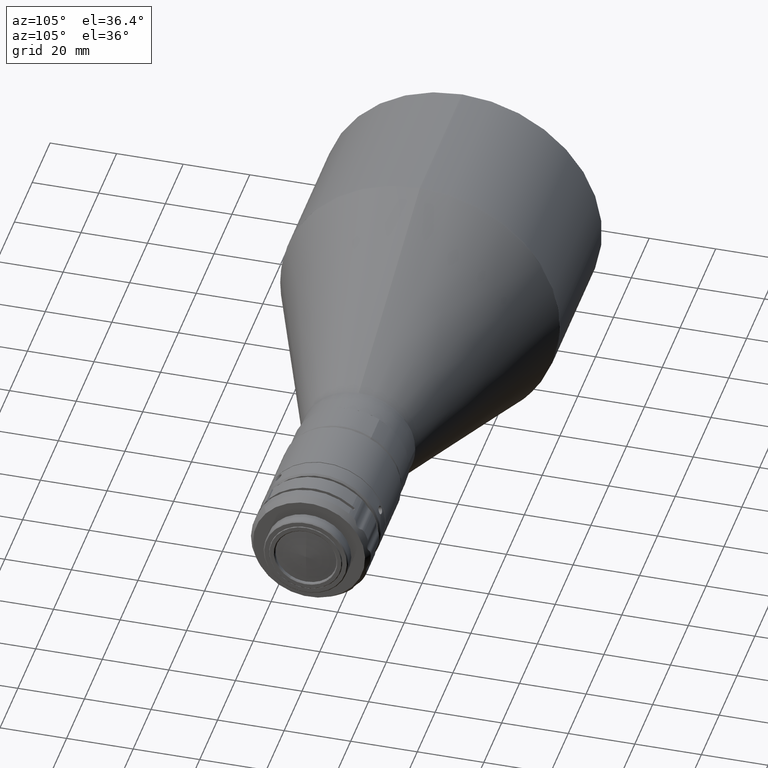
[diagram: clean part render]
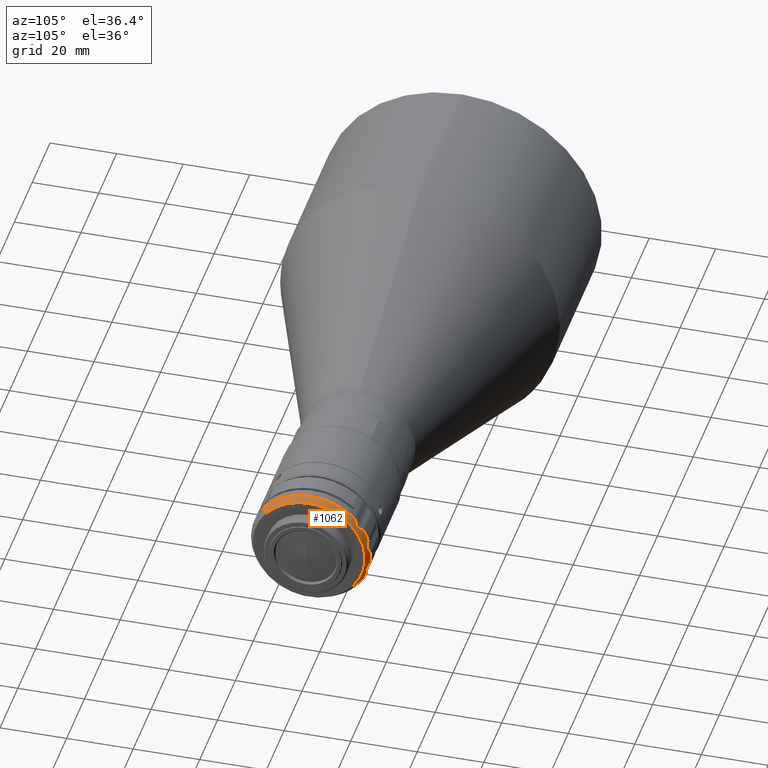
[diagram: same view with one face highlighted and labeled with its STEP entity id]
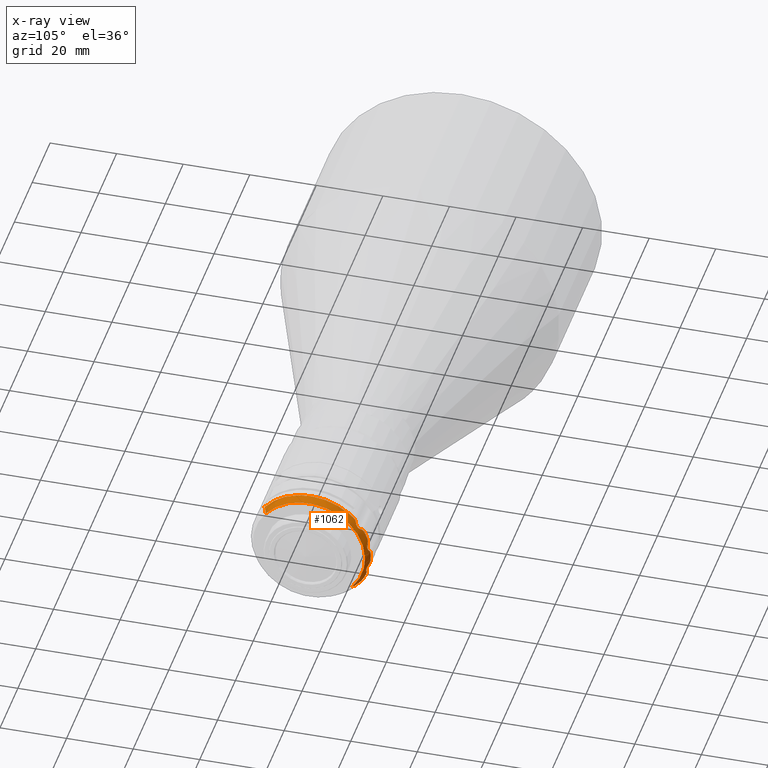
[diagram: x-ray of the same camera — body ghosted, the highlighted face saturated]
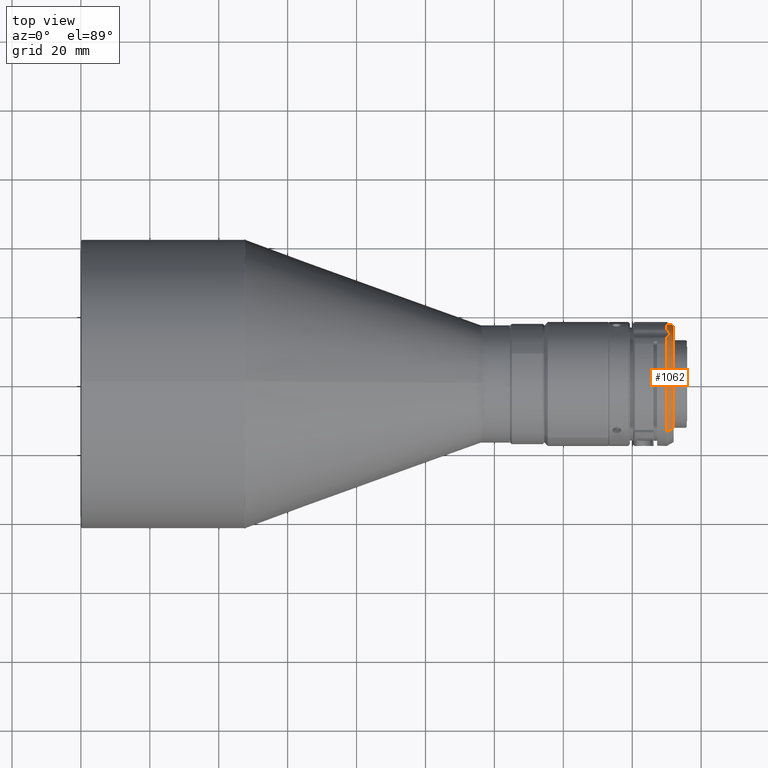
[diagram: same view with one face highlighted and labeled with its STEP entity id]
A machine part, auxiliary view. The second image highlights one B-rep face of the part: STEP entity #1062.
The next image is the same camera in x-ray: the body ghosted, the highlighted face saturated — about 0% of this face is hidden behind the body in this view.
A second angle (top view) of the same face is appended — the face is thin or edge-on in the first view.
In plain terms, the highlighted conical surface has half-angle 30 deg.
Its self-contained STEP definition (entity closure, byte-faithful):
#19 = CARTESIAN_POINT ( 'NONE',  ( 170.4717503504343800, 13.68878098208271300, 11.28254610637641000 ) ) ;
#43 = ORIENTED_EDGE ( 'NONE', *, *, #1749, .F. ) ;
#46 = ORIENTED_EDGE ( 'NONE', *, *, #3446, .T. ) ;
#51 = DIRECTION ( 'NONE',  ( 0.0000000000000000000, 0.7716021499966070300, -0.6361054331796055500 ) ) ;
#66 = B_SPLINE_CURVE_WITH_KNOTS ( 'NONE', 3,
 ( #3078, #1339, #1319, #1675, #2737, #1704, #666, #2424 ),
 .UNSPECIFIED., .F., .F.,
 ( 4, 2, 2, 4 ),
 ( 0.0000000000000000000, 0.0007318732010900073500, 0.001097809801635022400, 0.001463746402180037700 ),
 .UNSPECIFIED. ) ;
#72 = VECTOR ( 'NONE', #4170, 1000.000000000000000 ) ;
#95 = ORIENTED_EDGE ( 'NONE', *, *, #3076, .F. ) ;
#120 = CARTESIAN_POINT ( 'NONE',  ( 170.0200000000000400, 0.0000000000000000000, 0.0000000000000000000 ) ) ;
#134 = DIRECTION ( 'NONE',  ( -1.000000000000000000, 0.0000000000000000000, -0.0000000000000000000 ) ) ;
#144 = CARTESIAN_POINT ( 'NONE',  ( 172.0200000000000100, -12.99786928221589300, 10.71538651131568700 ) ) ;
#186 = CARTESIAN_POINT ( 'NONE',  ( 170.0200000002182600, 12.99290850105912300, 12.45730021628160400 ) ) ;
#246 = CARTESIAN_POINT ( 'NONE',  ( 170.4717503490275900, 17.62515244227656900, 2.008126697513735100 ) ) ;
#268 = CARTESIAN_POINT ( 'NONE',  ( 172.0200000000000400, 12.99786928221587900, -10.71538651131567800 ) ) ;
#275 = CIRCLE ( 'NONE', #3099, 18.00000000000000400 ) ;
#277 = CARTESIAN_POINT ( 'NONE',  ( 170.4717503488226400, 15.12514189207363200, 9.268692151301202400 ) ) ;
#301 = DIRECTION ( 'NONE',  ( -0.8660254038555481600, 0.3858010749032688700, -0.3180527165114565000 ) ) ;
#366 = CARTESIAN_POINT ( 'NONE',  ( 170.4717503490275900, 17.62515244227656900, 2.008126697513735100 ) ) ;
#378 = B_SPLINE_CURVE_WITH_KNOTS ( 'NONE', 3,
 ( #1894, #4264, #1274, #3235, #4358, #2316, #2994, #2353, #1255, #277 ),
 .UNSPECIFIED., .F., .F.,
 ( 4, 2, 2, 2, 4 ),
 ( 0.0000000000000000000, 0.0006695850013534745100, 0.001339170002706949000, 0.002008755004060423500, 0.002678340005413898000 ),
 .UNSPECIFIED. ) ;
#423 = CIRCLE ( 'NONE', #976, 18.00000000000000400 ) ;
#441 = DIRECTION ( 'NONE',  ( -1.541976423090494800E-015, 0.7716021499966070300, -0.6361054331796055500 ) ) ;
#472 = CARTESIAN_POINT ( 'NONE',  ( 170.5943596014916500, 17.14976043232416500, 4.253058858563489000 ) ) ;
#529 = CARTESIAN_POINT ( 'NONE',  ( 170.4717503502911600, 17.17445882258711300, 4.440330570141446400 ) ) ;
#555 = CARTESIAN_POINT ( 'NONE',  ( 170.8862413627046200, 17.24765663219410800, 2.968946907887817200 ) ) ;
#561 = EDGE_CURVE ( 'NONE', #1102, #3661, #4253, .T. ) ;
#580 = ORIENTED_EDGE ( 'NONE', *, *, #561, .F. ) ;
#607 = CARTESIAN_POINT ( 'NONE',  ( 170.0312236906812000, 17.11249786983896100, 5.562685115095026100 ) ) ;
#609 = CARTESIAN_POINT ( 'NONE',  ( 170.8858077023131200, 16.99934928282623400, -4.162594394447066500 ) ) ;
#647 = CARTESIAN_POINT ( 'NONE',  ( 170.0736238499741800, 17.80512710578463100, -2.424488303890485400 ) ) ;
#666 = CARTESIAN_POINT ( 'NONE',  ( 170.0200000008353200, 16.64163433948501200, -6.860851990012108100 ) ) ;
#701 = CARTESIAN_POINT ( 'NONE',  ( 170.0736238500067000, 13.30218088496600600, 12.08108763695655700 ) ) ;
#705 = CARTESIAN_POINT ( 'NONE',  ( 170.0199999997707600, 17.04025671443750800, 5.799107785757405200 ) ) ;
#708 = CARTESIAN_POINT ( 'NONE',  ( 170.8451937671103700, 13.80102597996285500, -10.80050123116648700 ) ) ;
#734 = CARTESIAN_POINT ( 'NONE',  ( 170.1047161278639000, 13.36691116036485400, 11.98249876173584200 ) ) ;
#756 = CARTESIAN_POINT ( 'NONE',  ( 170.0200000000000400, 0.0000000000000000000, 0.0000000000000000000 ) ) ;
#794 = EDGE_CURVE ( 'NONE', #2408, #1695, #1357, .T. ) ;
#843 = EDGE_CURVE ( 'NONE', #2397, #1695, #2241, .T. ) ;
#845 = VERTEX_POINT ( 'NONE', #1801 ) ;
#851 = CARTESIAN_POINT ( 'NONE',  ( 170.4717503490275900, 17.62515244227656900, 2.008126697513735100 ) ) ;
#871 = CARTESIAN_POINT ( 'NONE',  ( 170.5943596016800300, 17.34038176732936200, -3.393221580907437300 ) ) ;
#901 = VERTEX_POINT ( 'NONE', #1862 ) ;
#911 = CARTESIAN_POINT ( 'NONE',  ( 170.3373716919265600, 15.29158022482489300, 9.145575036662503300 ) ) ;
#917 = CIRCLE ( 'NONE', #1731, 18.00000000000000400 ) ;
#928 = B_SPLINE_CURVE_WITH_KNOTS ( 'NONE', 3,
 ( #1893, #871, #3548, #2631, #609, #3173, #1201, #4190, #4040, #3669 ),
 .UNSPECIFIED., .F., .F.,
 ( 4, 2, 2, 2, 4 ),
 ( 0.0000000000000000000, 0.0006695850014280316200, 0.001339170002856063200, 0.002008755004284094900, 0.002678340005712126500 ),
 .UNSPECIFIED. ) ;
#935 = CARTESIAN_POINT ( 'NONE',  ( 170.0199999998415600, 16.00926641271006900, 8.228206908565630000 ) ) ;
#943 = ORIENTED_EDGE ( 'NONE', *, *, #843, .F. ) ;
#953 = CARTESIAN_POINT ( 'NONE',  ( 170.3373716941217700, 14.61564884832828800, -10.19101453344196500 ) ) ;
#976 = AXIS2_PLACEMENT_3D ( 'NONE', #2757, #2439, #1740 ) ;
#997 = EDGE_CURVE ( 'NONE', #4261, #1419, #917, .T. ) ;
#1000 = CARTESIAN_POINT ( 'NONE',  ( 170.0199999998544100, 15.39564017443957400, -9.325999336544851900 ) ) ;
#1043 = CARTESIAN_POINT ( 'NONE',  ( 170.8860254039945800, 13.64695926456054000, -10.95726671559742700 ) ) ;
#1048 = CARTESIAN_POINT ( 'NONE',  ( 170.2251474511325600, 13.54145246518727300, 11.68037429246720300 ) ) ;
#1062 = ADVANCED_FACE ( 'NONE', ( #1239 ), #2384, .T. ) ;
#1092 = ORIENTED_EDGE ( 'NONE', *, *, #2858, .T. ) ;
#1100 = CARTESIAN_POINT ( 'NONE',  ( 172.0200000000000400, -12.99786928221588100, 10.71538651131567700 ) ) ;
#1102 = VERTEX_POINT ( 'NONE', #2133 ) ;
#1113 = DIRECTION ( 'NONE',  ( -1.541976423090494800E-015, 0.7716021499966070300, -0.6361054331796055500 ) ) ;
#1133 = VERTEX_POINT ( 'NONE', #1100 ) ;
#1167 = CARTESIAN_POINT ( 'NONE',  ( 170.0200000004091700, 16.59373026901570100, -6.974820123175065900 ) ) ;
#1201 = CARTESIAN_POINT ( 'NONE',  ( 170.8454266945366300, 16.84959280642960200, -4.817237624834028500 ) ) ;
#1239 = FACE_OUTER_BOUND ( 'NONE', #1446, .T. ) ;
#1255 = CARTESIAN_POINT ( 'NONE',  ( 170.5944312039536300, 14.97319218954507200, 9.381091792574256500 ) ) ;
#1257 = ORIENTED_EDGE ( 'NONE', *, *, #3769, .F. ) ;
#1271 = VERTEX_POINT ( 'NONE', #4198 ) ;
#1274 = CARTESIAN_POINT ( 'NONE',  ( 170.6973777551586100, 13.81734836931945400, 10.91779981736539900 ) ) ;
#1290 = VERTEX_POINT ( 'NONE', #3844 ) ;
#1292 = CARTESIAN_POINT ( 'NONE',  ( 170.0199999998415600, 16.00926641271006900, 8.228206908565630000 ) ) ;
#1302 = CARTESIAN_POINT ( 'NONE',  ( 170.0199999997707600, 17.04025671443750800, 5.799107785757405200 ) ) ;
#1319 = CARTESIAN_POINT ( 'NONE',  ( 170.2251474509605800, 16.82747985029463700, -6.052933203826001800 ) ) ;
#1331 = CARTESIAN_POINT ( 'NONE',  ( 170.3376558866861200, 17.20147079221693400, 4.645144639272890800 ) ) ;
#1339 = CARTESIAN_POINT ( 'NONE',  ( 170.3376558856698200, 16.83512843793854300, -5.834930730841374000 ) ) ;
#1343 = CARTESIAN_POINT ( 'NONE',  ( 170.4717503504461100, 14.44101989254406600, -10.30220927184288400 ) ) ;
#1357 = LINE ( 'NONE', #1364, #4303 ) ;
#1360 = DIRECTION ( 'NONE',  ( -1.000000000000000000, 0.0000000000000000000, -0.0000000000000000000 ) ) ;
#1364 = CARTESIAN_POINT ( 'NONE',  ( 172.0200000000000100, 12.99786928221589100, -10.71538651131568700 ) ) ;
#1413 = B_SPLINE_CURVE_WITH_KNOTS ( 'NONE', 3,
 ( #19, #3788, #1048, #734, #701, #1753, #3443, #2801 ),
 .UNSPECIFIED., .F., .F.,
 ( 4, 2, 2, 4 ),
 ( 7.108696145181305200E-013, 0.0007318732060252493400, 0.001097809808682436900, 0.001463746411339624800 ),
 .UNSPECIFIED. ) ;
#1419 = VERTEX_POINT ( 'NONE', #1167 ) ;
#1444 = DIRECTION ( 'NONE',  ( 1.000000000000000000, -0.0000000000000000000, 0.0000000000000000000 ) ) ;
#1446 = EDGE_LOOP ( 'NONE', ( #3087, #1587, #1940, #943, #43, #1970, #1257, #1486, #2608, #95, #1528, #580, #1092, #3616, #4137, #2203, #46, #1682, #2140 ) ) ;
#1455 = CIRCLE ( 'NONE', #4043, 18.00000000000000400 ) ;
#1456 = EDGE_CURVE ( 'NONE', #1290, #2254, #928, .T. ) ;
#1486 = ORIENTED_EDGE ( 'NONE', *, *, #1456, .F. ) ;
#1528 = ORIENTED_EDGE ( 'NONE', *, *, #2425, .T. ) ;
#1553 = VERTEX_POINT ( 'NONE', #186 ) ;
#1587 = ORIENTED_EDGE ( 'NONE', *, *, #3912, .F. ) ;
#1601 = CARTESIAN_POINT ( 'NONE',  ( 170.8858077019641800, 17.16583103710026800, 3.411643730664837700 ) ) ;
#1666 = CARTESIAN_POINT ( 'NONE',  ( 170.0312236913145200, 17.86008238866709500, -2.190549267148788300 ) ) ;
#1675 = CARTESIAN_POINT ( 'NONE',  ( 170.1047161283833900, 16.77277892453956600, -6.397536844888030300 ) ) ;
#1682 = ORIENTED_EDGE ( 'NONE', *, *, #2853, .F. ) ;
#1686 = CARTESIAN_POINT ( 'NONE',  ( 170.2247196855311100, 14.78782109836086200, -10.05641382484214400 ) ) ;
#1695 = VERTEX_POINT ( 'NONE', #3276 ) ;
#1697 = EDGE_CURVE ( 'NONE', #3620, #4215, #3740, .T. ) ;
#1704 = CARTESIAN_POINT ( 'NONE',  ( 170.0312236921681400, 16.68230373859550800, -6.744018903971267200 ) ) ;
#1716 = DIRECTION ( 'NONE',  ( -1.541976423090494800E-015, 0.7716021499966070300, -0.6361054331796055500 ) ) ;
#1718 = CARTESIAN_POINT ( 'NONE',  ( 172.0200000000000100, 0.0000000000000000000, 0.0000000000000000000 ) ) ;
#1731 = AXIS2_PLACEMENT_3D ( 'NONE', #3336, #4378, #4395 ) ;
#1740 = DIRECTION ( 'NONE',  ( -1.541976423090494800E-015, 0.7716021499966070300, -0.6361054331796055500 ) ) ;
#1744 = DIRECTION ( 'NONE',  ( -1.000000000000000000, 0.0000000000000000000, -0.0000000000000000000 ) ) ;
#1749 = EDGE_CURVE ( 'NONE', #4261, #2397, #4085, .T. ) ;
#1753 = CARTESIAN_POINT ( 'NONE',  ( 170.0312236914485000, 13.15829776067241300, 12.27355894027852100 ) ) ;
#1783 = CARTESIAN_POINT ( 'NONE',  ( 170.6973523610981300, 14.12199883799997500, -10.52079243713685700 ) ) ;
#1801 = CARTESIAN_POINT ( 'NONE',  ( 170.4717503504343800, 13.68878098208271300, 11.28254610637641000 ) ) ;
#1862 = CARTESIAN_POINT ( 'NONE',  ( 170.0199999999111900, 17.98671331548752400, 0.6914796514074679200 ) ) ;
#1893 = CARTESIAN_POINT ( 'NONE',  ( 170.4717503507254400, 17.44191055589170200, -3.233933761265181500 ) ) ;
#1894 = CARTESIAN_POINT ( 'NONE',  ( 170.4717503504343800, 13.68878098208271300, 11.28254610637641000 ) ) ;
#1928 = EDGE_CURVE ( 'NONE', #1133, #1271, #4296, .T. ) ;
#1940 = ORIENTED_EDGE ( 'NONE', *, *, #794, .T. ) ;
#1970 = ORIENTED_EDGE ( 'NONE', *, *, #997, .T. ) ;
#1980 = CARTESIAN_POINT ( 'NONE',  ( 170.0641255865629100, 15.11716679720988100, -9.726610124608534100 ) ) ;
#1997 = CARTESIAN_POINT ( 'NONE',  ( 170.2251474506600700, 17.20906329721228200, 4.863149074552885600 ) ) ;
#2040 = CARTESIAN_POINT ( 'NONE',  ( 170.0200000000903600, 17.89452620527397600, -1.945747128196701800 ) ) ;
#2053 = B_SPLINE_CURVE_WITH_KNOTS ( 'NONE', 3,
 ( #2693, #1331, #1997, #2060, #3383, #607, #2338, #1302 ),
 .UNSPECIFIED., .F., .F.,
 ( 4, 2, 2, 4 ),
 ( 7.411296004553642000E-013, 0.0007318732059759671500, 0.001097809808593387300, 0.001463746411210807300 ),
 .UNSPECIFIED. ) ;
#2060 = CARTESIAN_POINT ( 'NONE',  ( 170.1047161272581400, 17.17855847162581600, 5.210731176482666700 ) ) ;
#2087 = CARTESIAN_POINT ( 'NONE',  ( 170.4717503504461100, 14.44101989254406600, -10.30220927184288400 ) ) ;
#2111 = CARTESIAN_POINT ( 'NONE',  ( 170.0200000000903600, 17.89452620527397600, -1.945747128196701800 ) ) ;
#2133 = CARTESIAN_POINT ( 'NONE',  ( 170.4717503502911600, 17.17445882258711300, 4.440330570141446400 ) ) ;
#2140 = ORIENTED_EDGE ( 'NONE', *, *, #3423, .F. ) ;
#2203 = ORIENTED_EDGE ( 'NONE', *, *, #3679, .F. ) ;
#2218 = CARTESIAN_POINT ( 'NONE',  ( 170.6973777552665900, 17.13683200398709200, 4.055423242540544300 ) ) ;
#2241 = B_SPLINE_CURVE_WITH_KNOTS ( 'NONE', 3,
 ( #2087, #3778, #1783, #708, #1043, #3427 ),
 .UNSPECIFIED., .F., .F.,
 ( 4, 2, 4 ),
 ( -0.001331001270078610600, -0.0006655006350393052900, 0.0000000000000000000 ),
 .UNSPECIFIED. ) ;
#2254 = VERTEX_POINT ( 'NONE', #3640 ) ;
#2285 = CARTESIAN_POINT ( 'NONE',  ( 170.6975008393653800, 17.45201230627524300, 2.354208236313673400 ) ) ;
#2286 = CARTESIAN_POINT ( 'NONE',  ( 170.0200000000000400, 11.44989779723290000, 13.88883869993892600 ) ) ;
#2316 = CARTESIAN_POINT ( 'NONE',  ( 170.8862413625673800, 14.37695433274752200, 9.979954366668174300 ) ) ;
#2334 = CARTESIAN_POINT ( 'NONE',  ( 170.2251474512593200, 17.65196368199785600, -2.865354541036004800 ) ) ;
#2338 = CARTESIAN_POINT ( 'NONE',  ( 170.0199999993851100, 17.08008582409348000, 5.682072842712939200 ) ) ;
#2353 = CARTESIAN_POINT ( 'NONE',  ( 170.6975008392758200, 14.82196326023451000, 9.509176361409224400 ) ) ;
#2384 = CONICAL_SURFACE ( 'NONE', #3457, 16.84529946200000300, 0.5235987754560796900 ) ;
#2389 = CARTESIAN_POINT ( 'NONE',  ( 170.3376558871523500, 17.55294988026262000, -3.059724926880404500 ) ) ;
#2390 = EDGE_CURVE ( 'NONE', #1290, #2473, #3021, .T. ) ;
#2397 = VERTEX_POINT ( 'NONE', #1343 ) ;
#2408 = VERTEX_POINT ( 'NONE', #268 ) ;
#2413 = CARTESIAN_POINT ( 'NONE',  ( 170.3373716921125500, 17.72396525837968900, 1.826204818581491400 ) ) ;
#2424 = CARTESIAN_POINT ( 'NONE',  ( 170.0200000004091700, 16.59373026901570100, -6.974820123175065900 ) ) ;
#2425 = EDGE_CURVE ( 'NONE', #901, #3661, #4061, .T. ) ;
#2439 = DIRECTION ( 'NONE',  ( -1.000000000000000000, 0.0000000000000000000, -0.0000000000000000000 ) ) ;
#2473 = VERTEX_POINT ( 'NONE', #2111 ) ;
#2499 = AXIS2_PLACEMENT_3D ( 'NONE', #756, #3142, #1113 ) ;
#2565 = CIRCLE ( 'NONE', #4301, 16.84529946199998600 ) ;
#2608 = ORIENTED_EDGE ( 'NONE', *, *, #2390, .T. ) ;
#2621 = CARTESIAN_POINT ( 'NONE',  ( 170.8452836539557000, 17.14480711647963700, 3.629459399898369700 ) ) ;
#2628 = CARTESIAN_POINT ( 'NONE',  ( 170.0641255866194100, 15.75944613838873700, 8.647284770408891300 ) ) ;
#2631 = CARTESIAN_POINT ( 'NONE',  ( 170.8452836542603600, 17.07234801938660600, -3.956301264511463700 ) ) ;
#2642 = CARTESIAN_POINT ( 'NONE',  ( 170.0199999996956700, 15.89598107549905800, 8.448621290705205000 ) ) ;
#2649 = CARTESIAN_POINT ( 'NONE',  ( 170.8454266940476300, 17.30676976054669300, 2.755045651511894600 ) ) ;
#2686 = CARTESIAN_POINT ( 'NONE',  ( 170.0199999998540900, 17.97719307523270200, 0.9391193745718674500 ) ) ;
#2693 = CARTESIAN_POINT ( 'NONE',  ( 170.4717503502911600, 17.17445882258711300, 4.440330570141446400 ) ) ;
#2699 = CARTESIAN_POINT ( 'NONE',  ( 170.0200000000221800, 17.88116253313025100, -2.068649317509073000 ) ) ;
#2737 = CARTESIAN_POINT ( 'NONE',  ( 170.0736238506701700, 16.74767097139984200, -6.512772973777800600 ) ) ;
#2757 = CARTESIAN_POINT ( 'NONE',  ( 170.0200000000000400, 0.0000000000000000000, 0.0000000000000000000 ) ) ;
#2801 = CARTESIAN_POINT ( 'NONE',  ( 170.0200000002182600, 12.99290850105912300, 12.45730021628160400 ) ) ;
#2853 = EDGE_CURVE ( 'NONE', #3320, #1553, #1455, .T. ) ;
#2858 = EDGE_CURVE ( 'NONE', #1102, #4370, #2053, .T. ) ;
#2952 = CARTESIAN_POINT ( 'NONE',  ( 170.4717503488226400, 15.12514189207363200, 9.268692151301202400 ) ) ;
#2994 = CARTESIAN_POINT ( 'NONE',  ( 170.8454266939240500, 14.52092759841988500, 9.811076279921067600 ) ) ;
#3005 = CARTESIAN_POINT ( 'NONE',  ( 170.0199999992444800, 15.26724051456720400, -9.537965357133519000 ) ) ;
#3021 = B_SPLINE_CURVE_WITH_KNOTS ( 'NONE', 3,
 ( #3329, #2389, #2334, #4088, #647, #1666, #2699, #2040 ),
 .UNSPECIFIED., .F., .F.,
 ( 4, 2, 2, 4 ),
 ( 4.865869880390243200E-013, 0.0007318732056748921200, 0.001097809808269056200, 0.001463746410863220500 ),
 .UNSPECIFIED. ) ;
#3076 = EDGE_CURVE ( 'NONE', #901, #2473, #275, .T. ) ;
#3078 = CARTESIAN_POINT ( 'NONE',  ( 170.4717503497361100, 16.82248391998587100, -5.628730424710255400 ) ) ;
#3087 = ORIENTED_EDGE ( 'NONE', *, *, #1928, .F. ) ;
#3099 = AXIS2_PLACEMENT_3D ( 'NONE', #120, #134, #441 ) ;
#3105 = DIRECTION ( 'NONE',  ( 0.0000000000000000000, 0.7716021499966070300, -0.6361054331796054400 ) ) ;
#3108 = CARTESIAN_POINT ( 'NONE',  ( 172.0200000000000400, 0.0000000000000000000, 0.0000000000000000000 ) ) ;
#3110 = EDGE_CURVE ( 'NONE', #3620, #4370, #3416, .T. ) ;
#3142 = DIRECTION ( 'NONE',  ( -1.000000000000000000, 0.0000000000000000000, -0.0000000000000000000 ) ) ;
#3173 = CARTESIAN_POINT ( 'NONE',  ( 170.8862413631470400, 16.88641669506861100, -4.598394962972713000 ) ) ;
#3235 = CARTESIAN_POINT ( 'NONE',  ( 170.8452836538195900, 14.00459637459074200, 10.53511589800251300 ) ) ;
#3276 = CARTESIAN_POINT ( 'NONE',  ( 170.8860254040688700, 13.50303762494062600, -11.13184508064309600 ) ) ;
#3320 = VERTEX_POINT ( 'NONE', #2286 ) ;
#3329 = CARTESIAN_POINT ( 'NONE',  ( 170.4717503507254400, 17.44191055589170200, -3.233933761265181500 ) ) ;
#3336 = CARTESIAN_POINT ( 'NONE',  ( 170.0200000000000100, 0.0000000000000000000, 0.0000000000000000000 ) ) ;
#3383 = CARTESIAN_POINT ( 'NONE',  ( 170.0736238493509500, 17.16155837808465300, 5.327439238261943500 ) ) ;
#3416 = CIRCLE ( 'NONE', #2499, 18.00000000000000400 ) ;
#3420 = CARTESIAN_POINT ( 'NONE',  ( 170.2247196852289300, 17.80928059005861300, 1.625003607411360100 ) ) ;
#3423 = EDGE_CURVE ( 'NONE', #1271, #3320, #423, .T. ) ;
#3427 = CARTESIAN_POINT ( 'NONE',  ( 170.8860254040688700, 13.50303762494062600, -11.13184508064309600 ) ) ;
#3443 = CARTESIAN_POINT ( 'NONE',  ( 170.0200000002149400, 13.07846703725708400, 12.36806304505401300 ) ) ;
#3446 = EDGE_CURVE ( 'NONE', #845, #1553, #1413, .T. ) ;
#3457 = AXIS2_PLACEMENT_3D ( 'NONE', #1718, #1744, #3105 ) ;
#3548 = CARTESIAN_POINT ( 'NONE',  ( 170.6973777555003800, 17.24514021160532100, -3.566876488795821300 ) ) ;
#3616 = ORIENTED_EDGE ( 'NONE', *, *, #3110, .F. ) ;
#3620 = VERTEX_POINT ( 'NONE', #1292 ) ;
#3640 = CARTESIAN_POINT ( 'NONE',  ( 170.4717503497361100, 16.82248391998587100, -5.628730424710255400 ) ) ;
#3644 = CARTESIAN_POINT ( 'NONE',  ( 170.0199999998544100, 15.39564017443957400, -9.325999336544851900 ) ) ;
#3651 = CARTESIAN_POINT ( 'NONE',  ( 170.5944312039108600, 17.53494138480122500, 2.174212086760343600 ) ) ;
#3661 = VERTEX_POINT ( 'NONE', #851 ) ;
#3669 = CARTESIAN_POINT ( 'NONE',  ( 170.4717503497361100, 16.82248391998587100, -5.628730424710255400 ) ) ;
#3679 = EDGE_CURVE ( 'NONE', #845, #4215, #378, .T. ) ;
#3712 = CARTESIAN_POINT ( 'NONE',  ( 170.0200000000000400, 0.0000000000000000000, 0.0000000000000000000 ) ) ;
#3740 = B_SPLINE_CURVE_WITH_KNOTS ( 'NONE', 3,
 ( #935, #2642, #2628, #4020, #911, #2952 ),
 .UNSPECIFIED., .F., .F.,
 ( 4, 2, 4 ),
 ( 0.0000000000000000000, 0.0007292985766917493400, 0.001458597153383498700 ),
 .UNSPECIFIED. ) ;
#3768 = CARTESIAN_POINT ( 'NONE',  ( 170.0641255868209800, 17.93740921293719400, 1.176871791138042000 ) ) ;
#3769 = EDGE_CURVE ( 'NONE', #2254, #1419, #66, .T. ) ;
#3778 = CARTESIAN_POINT ( 'NONE',  ( 170.5943693418460600, 14.28167296130118300, -10.40367320298527800 ) ) ;
#3788 = CARTESIAN_POINT ( 'NONE',  ( 170.3376558871169400, 13.62670397443469400, 11.47958644393905900 ) ) ;
#3844 = CARTESIAN_POINT ( 'NONE',  ( 170.4717503507254400, 17.44191055589170200, -3.233933761265181500 ) ) ;
#3912 = EDGE_CURVE ( 'NONE', #2408, #1133, #2565, .T. ) ;
#4019 = CARTESIAN_POINT ( 'NONE',  ( 170.4717503488226400, 15.12514189207363200, 9.268692151301202400 ) ) ;
#4020 = CARTESIAN_POINT ( 'NONE',  ( 170.2247196849545200, 15.45393348055409000, 8.999280629239654800 ) ) ;
#4040 = CARTESIAN_POINT ( 'NONE',  ( 170.5944312037912000, 16.81091565472452500, -5.440081104063510900 ) ) ;
#4043 = AXIS2_PLACEMENT_3D ( 'NONE', #3712, #1360, #1716 ) ;
#4061 = B_SPLINE_CURVE_WITH_KNOTS ( 'NONE', 3,
 ( #4367, #2686, #3768, #3420, #2413, #366 ),
 .UNSPECIFIED., .F., .F.,
 ( 4, 2, 4 ),
 ( 1.025697037088686400E-013, 0.0007292985768762371800, 0.001458597153649904500 ),
 .UNSPECIFIED. ) ;
#4085 = B_SPLINE_CURVE_WITH_KNOTS ( 'NONE', 3,
 ( #3644, #3005, #1980, #1686, #953, #4408 ),
 .UNSPECIFIED., .F., .F.,
 ( 4, 2, 4 ),
 ( 2.555053030309975100E-012, 0.0007292985817401258800, 0.001458597160925198600 ),
 .UNSPECIFIED. ) ;
#4088 = CARTESIAN_POINT ( 'NONE',  ( 170.1047161278753500, 17.77121146474507500, -2.537446279067710400 ) ) ;
#4137 = ORIENTED_EDGE ( 'NONE', *, *, #1697, .T. ) ;
#4170 = DIRECTION ( 'NONE',  ( -0.8660254038555482700, -0.3858010749032688700, 0.3180527165114565000 ) ) ;
#4190 = CARTESIAN_POINT ( 'NONE',  ( 170.6975008399285200, 16.81182604493023200, -5.241901847790966700 ) ) ;
#4198 = CARTESIAN_POINT ( 'NONE',  ( 170.0200000000000400, -13.88883869993892100, 11.44989779723289100 ) ) ;
#4215 = VERTEX_POINT ( 'NONE', #4019 ) ;
#4253 = B_SPLINE_CURVE_WITH_KNOTS ( 'NONE', 3,
 ( #529, #472, #2218, #2621, #1601, #555, #2649, #2285, #3651, #246 ),
 .UNSPECIFIED., .F., .F.,
 ( 4, 2, 2, 2, 4 ),
 ( 0.0000000000000000000, 0.0006695850014288580000, 0.001339170002857716000, 0.002008755004286573800, 0.002678340005715432000 ),
 .UNSPECIFIED. ) ;
#4261 = VERTEX_POINT ( 'NONE', #1000 ) ;
#4264 = CARTESIAN_POINT ( 'NONE',  ( 170.5943596013797500, 13.74554108402576000, 11.10238230501433100 ) ) ;
#4296 = LINE ( 'NONE', #144, #72 ) ;
#4301 = AXIS2_PLACEMENT_3D ( 'NONE', #3108, #1444, #51 ) ;
#4303 = VECTOR ( 'NONE', #301, 1000.000000000000100 ) ;
#4358 = CARTESIAN_POINT ( 'NONE',  ( 170.8858077018212200, 14.11570339706006600, 10.34659295364230400 ) ) ;
#4367 = CARTESIAN_POINT ( 'NONE',  ( 170.0199999999111900, 17.98671331548752400, 0.6914796514074679200 ) ) ;
#4370 = VERTEX_POINT ( 'NONE', #705 ) ;
#4378 = DIRECTION ( 'NONE',  ( 1.000000000000000000, -0.0000000000000000000, 0.0000000000000000000 ) ) ;
#4395 = DIRECTION ( 'NONE',  ( 0.0000000000000000000, 0.7716021499966070300, -0.6361054331796055500 ) ) ;
#4408 = CARTESIAN_POINT ( 'NONE',  ( 170.4717503504461100, 14.44101989254406600, -10.30220927184288400 ) ) ;